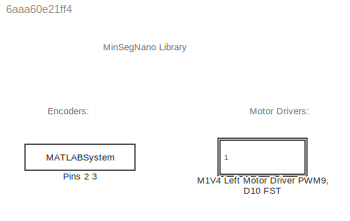
MODEL slx_6aaa60e21ff4
KIND library
CONFIG AbsTol = auto
CONFIG FixedStep = auto
CONFIG MaxStep = auto
CONFIG MinStep = auto
CONFIG RelTol = 1e-3
CONFIG SampleTimeConstraint = Unconstrained
CONFIG Solver = ode45
CONFIG SolverMode = Auto
CONFIG SolverName = ode45
CONFIG StartTime = 0.0
CONFIG StopTime = 10.0
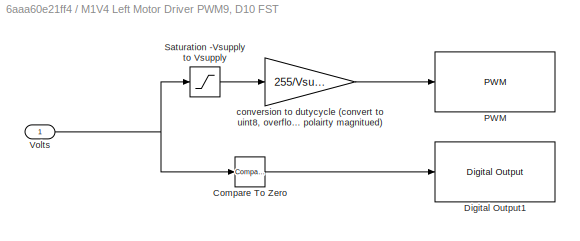
BLOCK [SubSystem] M1V4 Left Motor Driver PWM9, D10 FST
  Ports = [1]
  RequestExecContextInheritance = off
BLOCK [Reference] M1V4 Left Motor Driver PWM9, D10 FST/Compare To Zero  REF=simulink/Logic and Bit
Operations/Compare
To Zero
  OutDataTypeStr = boolean
  Ports = [1, 1]
  SourceBlock = simulink/Logic and Bit\nOperations/Compare\nTo Zero
  SourceType = Compare To Zero
  ZeroCross = on
  relop = <
BLOCK [Reference] M1V4 Left Motor Driver PWM9, D10 FST/Digital Output1  REF=arduinolib/Digital Output
  Ports = [1]
  SourceBlock = arduinolib/Digital Output
  SourceType = Arduino Digital Output
  blockPlatform = arduino
  pinNumber = 10
BLOCK [Reference] M1V4 Left Motor Driver PWM9, D10 FST/PWM  REF=arduinolib/PWM
  Ports = [1]
  SourceBlock = arduinolib/PWM
  SourceType = Arduino PWM
  blockPlatform = arduino
  pinNumber = 9
BLOCK [Saturate] M1V4 Left Motor Driver PWM9, D10 FST/Saturation -Vsupply to Vsupply
  InputPortMap = u0
  LowerLimit = -Vsupply
  OutDataTypeStr = single
  Ports = [1, 1]
  UpperLimit = Vsupply
BLOCK [Inport] M1V4 Left Motor Driver PWM9, D10 FST/Volts
  IconDisplay = Port number
BLOCK [Gain] M1V4 Left Motor Driver PWM9, D10 FST/conversion to dutycycle (convert to uint8, overflow will provide reverse polairty magnitued)
  Gain = 255/Vsupply
  OutDataTypeStr = uint8
  ParamDataTypeStr = Inherit: Inherit via internal rule
  SaturateOnIntegerOverflow = off
BLOCK [MATLABSystem] Pins 2 3
  Encoder = 0
  MaskDisplay = disp('soEncoder');\nport_label('output',1,'y');
  MaskType = Encoder_arduino_uno_nano
  PinA = 2
  PinB = 3
  Ports = [0, 1]
  System = Encoder_arduino_uno_nano
ANNOTATION (root): MinSegNano Library
ANNOTATION (root): Encoders:
ANNOTATION (root): Motor Drivers:
LINE M1V4 Left Motor Driver PWM9, D10 FST/Compare To Zero:1 -> M1V4 Left Motor Driver PWM9, D10 FST/Digital Output1:1
LINE M1V4 Left Motor Driver PWM9, D10 FST/Saturation -Vsupply to Vsupply:1 -> M1V4 Left Motor Driver PWM9, D10 FST/conversion to dutycycle (convert to uint8, overflow will provide reverse polairty magnitued):1
NET M1V4 Left Motor Driver PWM9, D10 FST/Volts:1 -> M1V4 Left Motor Driver PWM9, D10 FST/Compare To Zero:1, M1V4 Left Motor Driver PWM9, D10 FST/Saturation -Vsupply to Vsupply:1
LINE M1V4 Left Motor Driver PWM9, D10 FST/conversion to dutycycle (convert to uint8, overflow will provide reverse polairty magnitued):1 -> M1V4 Left Motor Driver PWM9, D10 FST/PWM:1
note: NET lines group one-source signal fan-out (src -> all destinations, sorted); 1:1 wires keep LINE
